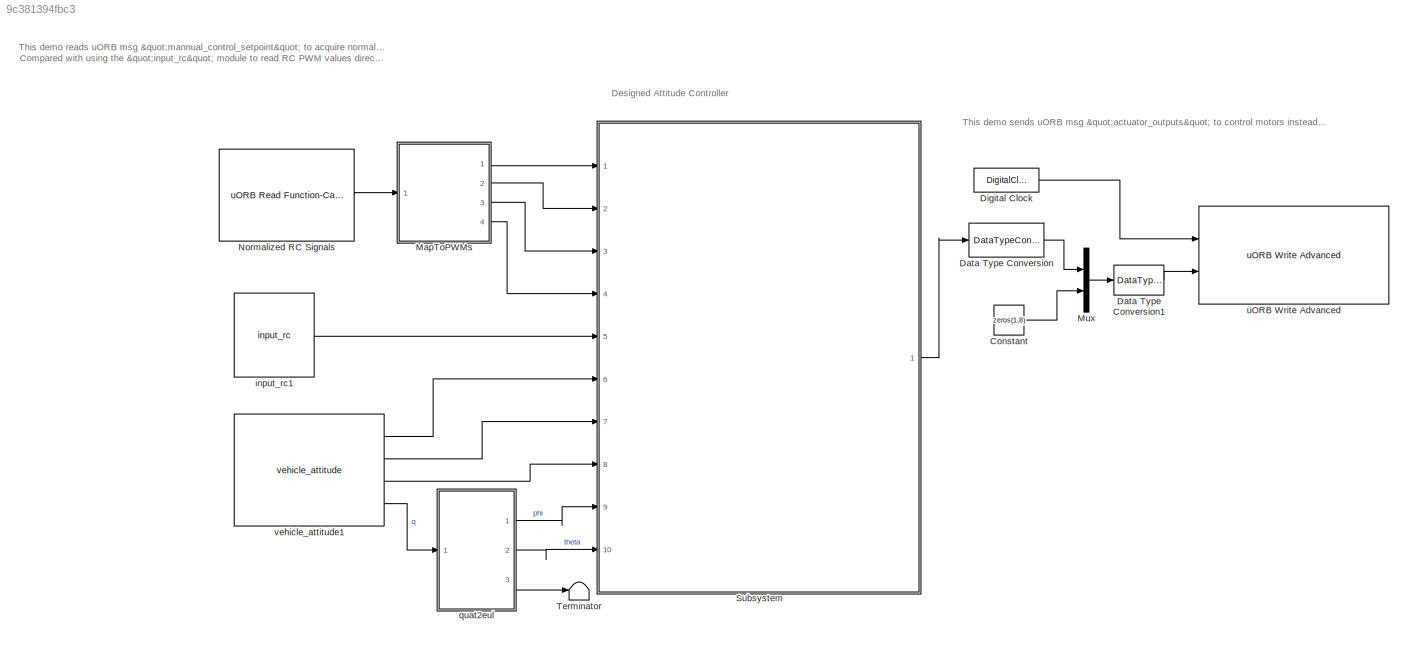
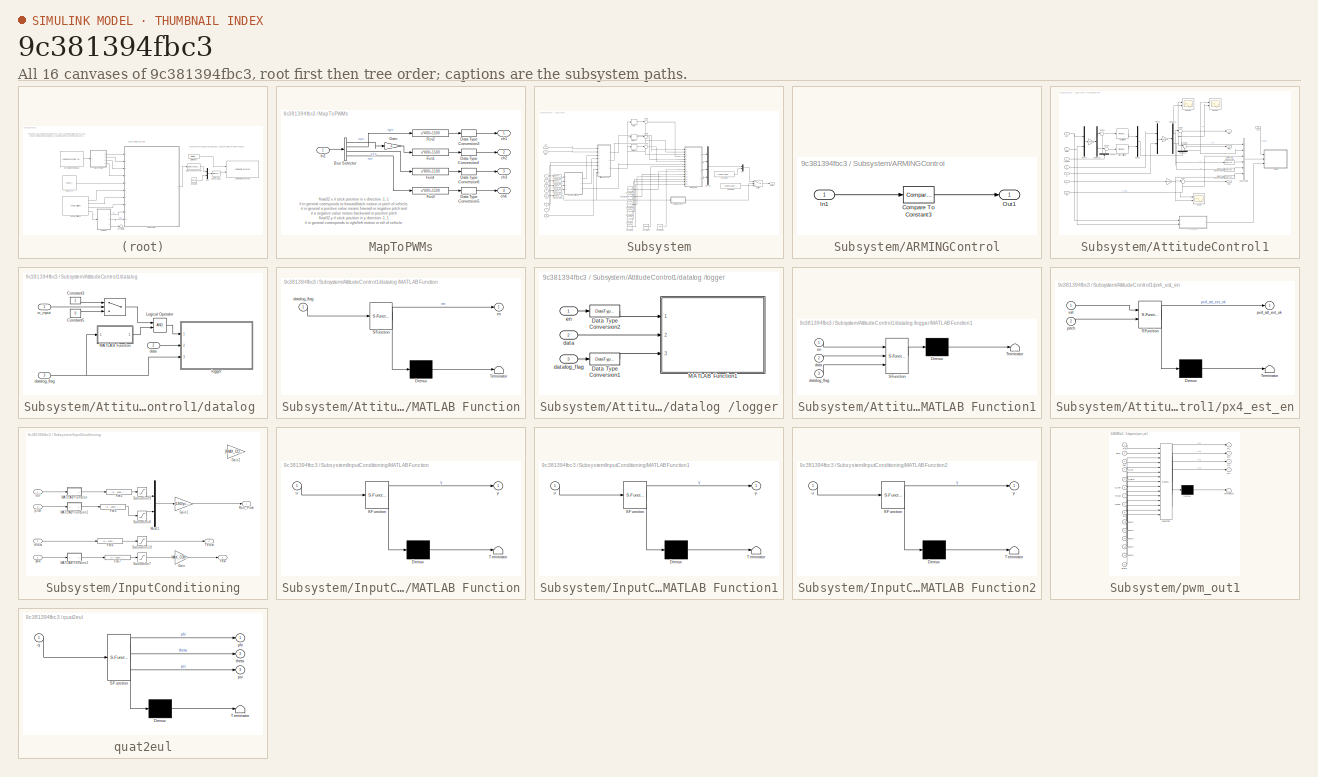
[diagram: thumbnail index - all 16 canvases of the model, root first then tree order]
MODEL slx_9c381394fbc3
KIND model
CONFIG AbsTol = auto
CONFIG EnableMultiTasking = off
CONFIG FixedStep = 0.01
CONFIG InitFcn = Init_control
CONFIG MaxStep = auto
CONFIG MinStep = auto
CONFIG RelTol = 1e-3
CONFIG SampleTimeConstraint = Unconstrained
CONFIG Solver = ode4
CONFIG SolverName = ode4
CONFIG StartTime = 0.0
CONFIG StopTime = inf
BLOCK [Constant] Constant
  Value = zeros(1,8)
BLOCK [DataTypeConversion] Data Type Conversion
  OutDataTypeStr = double
  RndMeth = Floor
  SaturateOnIntegerOverflow = off
BLOCK [DataTypeConversion] Data Type Conversion1
  OutDataTypeStr = single
  RndMeth = Floor
  SaturateOnIntegerOverflow = off
BLOCK [DigitalClock] Digital Clock
  SampleTime = -1
BLOCK [SubSystem] MapToPWMs
  Ports = [1, 4]
  RequestExecContextInheritance = off
BLOCK [BusSelector] MapToPWMs/Bus Selector
  OutputSignals = x,y,z,r
  Ports = [1, 4]
BLOCK [DataTypeConversion] MapToPWMs/Data Type Conversion3
  OutDataTypeStr = uint16
  RndMeth = Floor
  SaturateOnIntegerOverflow = off
BLOCK [DataTypeConversion] MapToPWMs/Data Type Conversion4
  OutDataTypeStr = uint16
  RndMeth = Floor
  SaturateOnIntegerOverflow = off
BLOCK [DataTypeConversion] MapToPWMs/Data Type Conversion5
  OutDataTypeStr = uint16
  RndMeth = Floor
  SaturateOnIntegerOverflow = off
BLOCK [DataTypeConversion] MapToPWMs/Data Type Conversion6
  OutDataTypeStr = uint16
  RndMeth = Floor
  SaturateOnIntegerOverflow = off
BLOCK [Fcn] MapToPWMs/Fcn1
  Expr = u*400+1500
BLOCK [Fcn] MapToPWMs/Fcn2
  Expr = u*400+1500
BLOCK [Fcn] MapToPWMs/Fcn3
  Expr = u*400+1500
BLOCK [Fcn] MapToPWMs/Fcn4
  Expr = u*800+1100
BLOCK [Gain] MapToPWMs/Gain
  Gain = -1
BLOCK [Inport] MapToPWMs/In1
BLOCK [Outport] MapToPWMs/ch1
  VectorParamsAs1DForOutWhenUnconnected = off
BLOCK [Outport] MapToPWMs/ch2
  Port = 2
  VectorParamsAs1DForOutWhenUnconnected = off
BLOCK [Outport] MapToPWMs/ch3
  Port = 3
  VectorParamsAs1DForOutWhenUnconnected = off
BLOCK [Outport] MapToPWMs/ch4
  Port = 4
  VectorParamsAs1DForOutWhenUnconnected = off
BLOCK [Mux] Mux
  DisplayOption = bar
  Inputs = 2
  Ports = [2, 1]
BLOCK [Reference] Normalized RC Signals  REF=pixhawk_slib_uORB_RW/uORB Read Function-Call Trigger
  Ports = [0, 1]
  SourceBlock = pixhawk_slib_uORB_RW/uORB Read Function-Call Trigger
  SourceProductName = Pixhawk Target Blocks
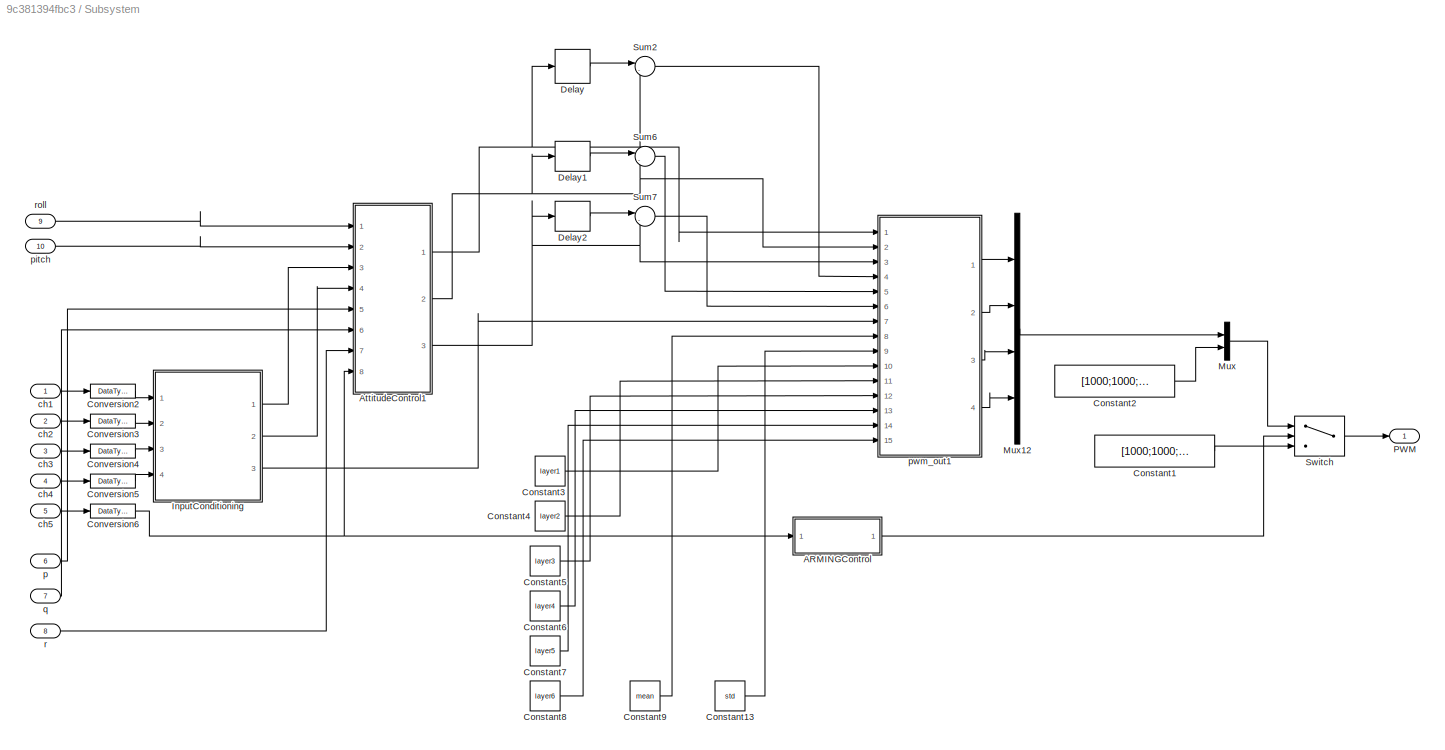
BLOCK [SubSystem] Subsystem
  Ports = [10, 1]
  RequestExecContextInheritance = off
BLOCK [SubSystem] Subsystem/ARMINGControl
  Ports = [1, 1]
  RequestExecContextInheritance = off
BLOCK [Reference] Subsystem/ARMINGControl/Compare To Constant3  REF=simulink/Logic and Bit
Operations/Compare
To Constant
  Ports = [1, 1]
  SourceBlock = simulink/Logic and Bit\nOperations/Compare\nTo Constant
  SourceProductBaseCode = SL
  SourceType = Compare To Constant
BLOCK [Inport] Subsystem/ARMINGControl/In1
BLOCK [Outport] Subsystem/ARMINGControl/Out1
  VectorParamsAs1DForOutWhenUnconnected = off
BLOCK [SubSystem] Subsystem/AttitudeControl1
  Ports = [8, 3]
  RequestExecContextInheritance = off
BLOCK [Gain] Subsystem/AttitudeControl1/ 
  Gain = 180/pi
BLOCK [Gain] Subsystem/AttitudeControl1/  
  Gain = 180/pi
BLOCK [Gain] Subsystem/AttitudeControl1/          
  Gain = 180/pi
BLOCK [BusCreator] Subsystem/AttitudeControl1/Bus Creator
  DisplayOption = bar
  InheritFromInputs = on
  Inputs = 6
  Ports = [6, 1]
BLOCK [DataTypeConversion] Subsystem/AttitudeControl1/Data Type Conversion
  OutDataTypeStr = double
  RndMeth = Floor
  SaturateOnIntegerOverflow = off
BLOCK [DataTypeConversion] Subsystem/AttitudeControl1/Data Type Conversion1
  OutDataTypeStr = double
  RndMeth = Floor
  SaturateOnIntegerOverflow = off
BLOCK [DataTypeConversion] Subsystem/AttitudeControl1/Data Type Conversion2
  OutDataTypeStr = double
  RndMeth = Floor
  SaturateOnIntegerOverflow = off
BLOCK [Demux] Subsystem/AttitudeControl1/Demux10
  Outputs = 2
  Ports = [1, 2]
BLOCK [Demux] Subsystem/AttitudeControl1/Demux12
  NameLocation = right
  Outputs = 2
  Ports = [1, 2]
BLOCK [Demux] Subsystem/AttitudeControl1/Demux13
  Outputs = 2
  Ports = [1, 2]
BLOCK [Demux] Subsystem/AttitudeControl1/Demux16
  NameLocation = right
  Outputs = 2
  Ports = [1, 2]
BLOCK [Mux] Subsystem/AttitudeControl1/Mux13
  DisplayOption = bar
  Inputs = 2
  Ports = [2, 1]
BLOCK [Mux] Subsystem/AttitudeControl1/Mux15
  DisplayOption = bar
  Inputs = 2
  Ports = [2, 1]
BLOCK [Mux] Subsystem/AttitudeControl1/Mux22
  DisplayOption = bar
  Inputs = 2
  Ports = [2, 1]
BLOCK [Outport] Subsystem/AttitudeControl1/Pitch
  Port = 2
  VectorParamsAs1DForOutWhenUnconnected = off
BLOCK [Outport] Subsystem/AttitudeControl1/Roll
  VectorParamsAs1DForOutWhenUnconnected = off
BLOCK [Scope] Subsystem/AttitudeControl1/Scope
  Floating = off
  NumInputPorts = 2
  Ports = [2]
  ScopeSpecificationString = Simulink.scopes.TimeScopeBlockCfg('CurrentConfiguration', extmgr.ConfigurationSet(extmgr.Configuration('Core','General UI',true),extmgr.Configuration('Core','Source UI',true),extmgr.Configuration('Sources','WiredSimulink',true,'DataLoggingVariableName','ScopeData2'),extmgr.Configuration('Visuals','Time Domain',true,'SerializedDisplays',{struct('MinYLimReal','-21.34606','MaxYLimReal','47.5262','YLa...<+1397ch>
BLOCK [Scope] Subsystem/AttitudeControl1/Scope1
  Floating = off
  NumInputPorts = 2
  Ports = [2]
  ScopeSpecificationString = Simulink.scopes.TimeScopeBlockCfg('CurrentConfiguration', extmgr.ConfigurationSet(extmgr.Configuration('Core','General UI',true),extmgr.Configuration('Core','Source UI',true),extmgr.Configuration('Sources','WiredSimulink',true,'DataLoggingVariableName','ScopeData3'),extmgr.Configuration('Visuals','Time Domain',true,'SerializedDisplays',{struct('MinYLimReal','-317.22955','MaxYLimReal','245.61283','...<+1406ch>
BLOCK [Scope] Subsystem/AttitudeControl1/Scope2
  Floating = off
  NumInputPorts = 2
  Ports = [2]
  ScopeSpecificationString = Simulink.scopes.TimeScopeBlockCfg('CurrentConfiguration', extmgr.ConfigurationSet(extmgr.Configuration('Core','General UI',true),extmgr.Configuration('Core','Source UI',true),extmgr.Configuration('Sources','WiredSimulink',true,'DataLoggingVariableName','ScopeData4'),extmgr.Configuration('Visuals','Time Domain',true,'SerializedDisplays',{struct('MinYLimReal','-330.49549','MaxYLimReal','242.5638','Y...<+1405ch>
BLOCK [Sum] Subsystem/AttitudeControl1/Sum17
  Inputs = |-+
  Ports = [2, 1]
BLOCK [Sum] Subsystem/AttitudeControl1/Sum18
  Inputs = |-+
  Ports = [2, 1]
BLOCK [Sum] Subsystem/AttitudeControl1/Sum19
  Inputs = |-+
  Ports = [2, 1]
BLOCK [Sum] Subsystem/AttitudeControl1/Sum21
  Inputs = |-+
  Ports = [2, 1]
BLOCK [Sum] Subsystem/AttitudeControl1/Sum22
  Inputs = |-+
  Ports = [2, 1]
BLOCK [Outport] Subsystem/AttitudeControl1/Yaw
  Port = 3
  VectorParamsAs1DForOutWhenUnconnected = off
BLOCK [Inport] Subsystem/AttitudeControl1/ch5
  Port = 8
BLOCK [SubSystem] Subsystem/AttitudeControl1/datalog 
  Ports = [3]
  RequestExecContextInheritance = off
BLOCK [Switch] Subsystem/AttitudeControl1/datalog / 
  Criteria = u2 > Threshold
  InputSameDT = off
  SaturateOnIntegerOverflow = off
  Threshold = 1600
BLOCK [Constant] Subsystem/AttitudeControl1/datalog /Constant3
BLOCK [Constant] Subsystem/AttitudeControl1/datalog /Constant5
  Value = 0
BLOCK [Logic] Subsystem/AttitudeControl1/datalog /Logical Operator
  AllPortsSameDT = off
  OutDataTypeStr = boolean
  Ports = [2, 1]
BLOCK [SubSystem] Subsystem/AttitudeControl1/datalog /MATLAB Function
  ErrorFcn = Stateflow.Translate.translate
  PermitHierarchicalResolution = ExplicitOnly
  Ports = [1, 1]
  RequestExecContextInheritance = off
  SFBlockType = MATLAB Function
  TreatAsAtomicUnit = on
BLOCK [Demux] Subsystem/AttitudeControl1/datalog /MATLAB Function/ Demux 
  Outputs = 1
  Ports = [1, 1]
BLOCK [S-Function] Subsystem/AttitudeControl1/datalog /MATLAB Function/ SFunction 
  EnableBusSupport = on
  FunctionName = sf_sfun
  PortCounts = [1 2]
  Ports = [1, 2]
  SFcnIsStateOwnerBlock = off
  SFunctionDeploymentMode = off
  Tag = Stateflow S-Function 4
BLOCK [Terminator] Subsystem/AttitudeControl1/datalog /MATLAB Function/ Terminator 
BLOCK [Inport] Subsystem/AttitudeControl1/datalog /MATLAB Function/datalog_flag
BLOCK [Outport] Subsystem/AttitudeControl1/datalog /MATLAB Function/en
  VectorParamsAs1DForOutWhenUnconnected = off
BLOCK [Inport] Subsystem/AttitudeControl1/datalog /data
  Port = 2
BLOCK [Inport] Subsystem/AttitudeControl1/datalog /datalog_flag
  Port = 3
BLOCK [SubSystem] Subsystem/AttitudeControl1/datalog /logger
  Ports = [3]
  RequestExecContextInheritance = off
BLOCK [DataTypeConversion] Subsystem/AttitudeControl1/datalog /logger/Data Type Conversion1
  OutDataTypeStr = boolean
  RndMeth = Floor
  SaturateOnIntegerOverflow = off
BLOCK [DataTypeConversion] Subsystem/AttitudeControl1/datalog /logger/Data Type Conversion2
  OutDataTypeStr = boolean
  RndMeth = Floor
  SaturateOnIntegerOverflow = off
BLOCK [SubSystem] Subsystem/AttitudeControl1/datalog /logger/MATLAB Function1
  ErrorFcn = Stateflow.Translate.translate
  PermitHierarchicalResolution = ExplicitOnly
  Ports = [3]
  RequestExecContextInheritance = off
  SFBlockType = MATLAB Function
  TreatAsAtomicUnit = on
BLOCK [Demux] Subsystem/AttitudeControl1/datalog /logger/MATLAB Function1/ Demux 
  Outputs = 1
  Ports = [1, 1]
BLOCK [S-Function] Subsystem/AttitudeControl1/datalog /logger/MATLAB Function1/ SFunction 
  EnableBusSupport = on
  FunctionName = sf_sfun
  Parameters = cacheflag,logname,numRecs
  PortCounts = [3 1]
  Ports = [3, 1]
  SFcnIsStateOwnerBlock = off
  SFunctionDeploymentMode = off
  Tag = Stateflow S-Function 5
BLOCK [Terminator] Subsystem/AttitudeControl1/datalog /logger/MATLAB Function1/ Terminator 
BLOCK [Inport] Subsystem/AttitudeControl1/datalog /logger/MATLAB Function1/data
  Port = 2
BLOCK [Inport] Subsystem/AttitudeControl1/datalog /logger/MATLAB Function1/datalog_flag
  Port = 3
BLOCK [Inport] Subsystem/AttitudeControl1/datalog /logger/MATLAB Function1/en
BLOCK [Inport] Subsystem/AttitudeControl1/datalog /logger/data
  Port = 2
BLOCK [Inport] Subsystem/AttitudeControl1/datalog /logger/datalog_flag
  Port = 3
BLOCK [Inport] Subsystem/AttitudeControl1/datalog /logger/en
BLOCK [Inport] Subsystem/AttitudeControl1/datalog /rc_input
BLOCK [Inport] Subsystem/AttitudeControl1/p
  Port = 5
BLOCK [Inport] Subsystem/AttitudeControl1/phi
BLOCK [Reference] Subsystem/AttitudeControl1/pitch_attitude  REF=simulink/Continuous/PID Controller
  Ports = [1, 1]
  SourceBlock = simulink/Continuous/PID Controller
  SourceProductBaseCode = SL
  SourceType = PID 1dof
BLOCK [SubSystem] Subsystem/AttitudeControl1/px4_est_en
  ErrorFcn = Stateflow.Translate.translate
  PermitHierarchicalResolution = ExplicitOnly
  Ports = [2, 1]
  RequestExecContextInheritance = off
  SFBlockType = MATLAB Function
  TreatAsAtomicUnit = on
BLOCK [Demux] Subsystem/AttitudeControl1/px4_est_en/ Demux 
  Outputs = 1
  Ports = [1, 1]
BLOCK [S-Function] Subsystem/AttitudeControl1/px4_est_en/ SFunction 
  EnableBusSupport = on
  FunctionName = sf_sfun
  PortCounts = [2 2]
  Ports = [2, 2]
  SFcnIsStateOwnerBlock = off
  SFunctionDeploymentMode = off
  Tag = Stateflow S-Function 6
BLOCK [Terminator] Subsystem/AttitudeControl1/px4_est_en/ Terminator 
BLOCK [Inport] Subsystem/AttitudeControl1/px4_est_en/pitch
  Port = 2
BLOCK [Outport] Subsystem/AttitudeControl1/px4_est_en/px4_att_est_ok
  VectorParamsAs1DForOutWhenUnconnected = off
BLOCK [Inport] Subsystem/AttitudeControl1/px4_est_en/roll
BLOCK [Inport] Subsystem/AttitudeControl1/q
  Port = 6
BLOCK [Inport] Subsystem/AttitudeControl1/r
  Port = 7
BLOCK [Reference] Subsystem/AttitudeControl1/roll_attitude  REF=simulink/Continuous/PID Controller
  Ports = [1, 1]
  SourceBlock = simulink/Continuous/PID Controller
  SourceProductBaseCode = SL
  SourceType = PID 1dof
BLOCK [Inport] Subsystem/AttitudeControl1/roll_pitch
  Port = 3
BLOCK [Inport] Subsystem/AttitudeControl1/theta
  Port = 2
BLOCK [Inport] Subsystem/AttitudeControl1/yaw
  Port = 4
BLOCK [Constant] Subsystem/Constant1
  Value = [1000;1000;1000;1000;1000;1000;1000;1000]
BLOCK [Constant] Subsystem/Constant13
  Value = std
BLOCK [Constant] Subsystem/Constant2
  Value = [1000;1000;1000;1000]
BLOCK [Constant] Subsystem/Constant3
  Value = layer1
BLOCK [Constant] Subsystem/Constant4
  Value = layer2
BLOCK [Constant] Subsystem/Constant5
  Value = layer3
BLOCK [Constant] Subsystem/Constant6
  Value = layer4
BLOCK [Constant] Subsystem/Constant7
  Value = layer5
BLOCK [Constant] Subsystem/Constant8
  Value = layer6
BLOCK [Constant] Subsystem/Constant9
  Value = mean
BLOCK [DataTypeConversion] Subsystem/Conversion2
  OutDataTypeStr = double
  RndMeth = Floor
  SaturateOnIntegerOverflow = off
BLOCK [DataTypeConversion] Subsystem/Conversion3
  OutDataTypeStr = double
  RndMeth = Floor
  SaturateOnIntegerOverflow = off
BLOCK [DataTypeConversion] Subsystem/Conversion4
  OutDataTypeStr = double
  RndMeth = Floor
  SaturateOnIntegerOverflow = off
BLOCK [DataTypeConversion] Subsystem/Conversion5
  OutDataTypeStr = double
  RndMeth = Floor
  SaturateOnIntegerOverflow = off
BLOCK [DataTypeConversion] Subsystem/Conversion6
  OutDataTypeStr = double
  RndMeth = Floor
  SaturateOnIntegerOverflow = off
BLOCK [Delay] Subsystem/Delay
  DelayLength = 1
  InitialCondition = 0
  InputPortMap = u0
  Ports = [1, 1]
BLOCK [Delay] Subsystem/Delay1
  DelayLength = 1
  InitialCondition = 0
  InputPortMap = u0
  Ports = [1, 1]
BLOCK [Delay] Subsystem/Delay2
  DelayLength = 1
  InitialCondition = 0
  InputPortMap = u0
  Ports = [1, 1]
BLOCK [SubSystem] Subsystem/InputConditioning
  Ports = [4, 3]
  RequestExecContextInheritance = off
BLOCK [Fcn] Subsystem/InputConditioning/Fcn2
  Expr = (u - 1500) / 400
BLOCK [Fcn] Subsystem/InputConditioning/Fcn5
  Expr = (u - 1500) / 400
BLOCK [Fcn] Subsystem/InputConditioning/Fcn6
  Expr = (u - 1100) / 800
BLOCK [Fcn] Subsystem/InputConditioning/Fcn7
  Expr = (u - 1500) / 400
BLOCK [Gain] Subsystem/InputConditioning/Gain
  Gain = MAX_CONTROL_ANGLE_RATE_Y
BLOCK [Gain] Subsystem/InputConditioning/Gain1
  Gain = [180/pi 180/pi]
  OutDataTypeStr = Inherit: Inherit via back propagation
BLOCK [Gain] Subsystem/InputConditioning/Gain2
  Gain = [MAX_CONTROL_ANGLE_RP MAX_CONTROL_ANGLE_RP]
  OutDataTypeStr = Inherit: Inherit via back propagation
BLOCK [SubSystem] Subsystem/InputConditioning/MATLAB Function
  ErrorFcn = Stateflow.Translate.translate
  PermitHierarchicalResolution = ExplicitOnly
  Ports = [1, 1]
  RequestExecContextInheritance = off
  SFBlockType = MATLAB Function
  TreatAsAtomicUnit = on
BLOCK [Demux] Subsystem/InputConditioning/MATLAB Function/ Demux 
  Outputs = 1
  Ports = [1, 1]
BLOCK [S-Function] Subsystem/InputConditioning/MATLAB Function/ SFunction 
  EnableBusSupport = on
  FunctionName = sf_sfun
  PortCounts = [1 2]
  Ports = [1, 2]
  SFcnIsStateOwnerBlock = off
  SFunctionDeploymentMode = off
  Tag = Stateflow S-Function 1
BLOCK [Terminator] Subsystem/InputConditioning/MATLAB Function/ Terminator 
BLOCK [Inport] Subsystem/InputConditioning/MATLAB Function/u
BLOCK [Outport] Subsystem/InputConditioning/MATLAB Function/y
  VectorParamsAs1DForOutWhenUnconnected = off
BLOCK [SubSystem] Subsystem/InputConditioning/MATLAB Function1
  ErrorFcn = Stateflow.Translate.translate
  PermitHierarchicalResolution = ExplicitOnly
  Ports = [1, 1]
  RequestExecContextInheritance = off
  SFBlockType = MATLAB Function
  TreatAsAtomicUnit = on
BLOCK [Demux] Subsystem/InputConditioning/MATLAB Function1/ Demux 
  Outputs = 1
  Ports = [1, 1]
BLOCK [S-Function] Subsystem/InputConditioning/MATLAB Function1/ SFunction 
  EnableBusSupport = on
  FunctionName = sf_sfun
  PortCounts = [1 2]
  Ports = [1, 2]
  SFcnIsStateOwnerBlock = off
  SFunctionDeploymentMode = off
  Tag = Stateflow S-Function 2
BLOCK [Terminator] Subsystem/InputConditioning/MATLAB Function1/ Terminator 
BLOCK [Inport] Subsystem/InputConditioning/MATLAB Function1/u
BLOCK [Outport] Subsystem/InputConditioning/MATLAB Function1/y
  VectorParamsAs1DForOutWhenUnconnected = off
BLOCK [SubSystem] Subsystem/InputConditioning/MATLAB Function2
  ErrorFcn = Stateflow.Translate.translate
  PermitHierarchicalResolution = ExplicitOnly
  Ports = [1, 1]
  RequestExecContextInheritance = off
  SFBlockType = MATLAB Function
  TreatAsAtomicUnit = on
BLOCK [Demux] Subsystem/InputConditioning/MATLAB Function2/ Demux 
  Outputs = 1
  Ports = [1, 1]
BLOCK [S-Function] Subsystem/InputConditioning/MATLAB Function2/ SFunction 
  EnableBusSupport = on
  FunctionName = sf_sfun
  PortCounts = [1 2]
  Ports = [1, 2]
  SFcnIsStateOwnerBlock = off
  SFunctionDeploymentMode = off
  Tag = Stateflow S-Function 3
BLOCK [Terminator] Subsystem/InputConditioning/MATLAB Function2/ Terminator 
BLOCK [Inport] Subsystem/InputConditioning/MATLAB Function2/u
BLOCK [Outport] Subsystem/InputConditioning/MATLAB Function2/y
  VectorParamsAs1DForOutWhenUnconnected = off
BLOCK [Mux] Subsystem/InputConditioning/Mux21
  DisplayOption = bar
  Inputs = 2
  Ports = [2, 1]
BLOCK [Outport] Subsystem/InputConditioning/Roll_Pitch
  VectorParamsAs1DForOutWhenUnconnected = off
BLOCK [Saturate] Subsystem/InputConditioning/Saturation10
  LowerLimit = 0
  UpperLimit = 1
BLOCK [Saturate] Subsystem/InputConditioning/Saturation7
  LowerLimit = -1
  UpperLimit = 1
BLOCK [Saturate] Subsystem/InputConditioning/Saturation8
  LowerLimit = -1
  UpperLimit = 1
BLOCK [Saturate] Subsystem/InputConditioning/Saturation9
  LowerLimit = -1
  UpperLimit = 1
BLOCK [Outport] Subsystem/InputConditioning/Thrust
  Port = 3
  VectorParamsAs1DForOutWhenUnconnected = off
BLOCK [Outport] Subsystem/InputConditioning/Yaw
  Port = 2
  VectorParamsAs1DForOutWhenUnconnected = off
BLOCK [Inport] Subsystem/InputConditioning/pitch
  Port = 2
BLOCK [Inport] Subsystem/InputConditioning/roll
BLOCK [Inport] Subsystem/InputConditioning/thrust
  Port = 3
BLOCK [Inport] Subsystem/InputConditioning/yaw
  Port = 4
BLOCK [Mux] Subsystem/Mux
  DisplayOption = bar
  Inputs = 2
  Ports = [2, 1]
BLOCK [Mux] Subsystem/Mux12
  DisplayOption = bar
  Ports = [4, 1]
BLOCK [Outport] Subsystem/PWM
  PortDimensions = 8
  SamplingMode = Sample based
  SignalType = real
  VectorParamsAs1DForOutWhenUnconnected = off
BLOCK [Sum] Subsystem/Sum2
  Inputs = |-+
  Ports = [2, 1]
BLOCK [Sum] Subsystem/Sum6
  Inputs = |-+
  Ports = [2, 1]
BLOCK [Sum] Subsystem/Sum7
  Inputs = |-+
  Ports = [2, 1]
BLOCK [Switch] Subsystem/Switch
  Criteria = u2 > Threshold
  InputSameDT = off
  SaturateOnIntegerOverflow = off
  Threshold = 0.5
BLOCK [Inport] Subsystem/ch1
  OutDataTypeStr = uint16
  PortDimensions = 1
  SamplingMode = Sample based
  SignalType = real
BLOCK [Inport] Subsystem/ch2
  OutDataTypeStr = uint16
  Port = 2
  PortDimensions = 1
  SamplingMode = Sample based
  SignalType = real
BLOCK [Inport] Subsystem/ch3
  OutDataTypeStr = uint16
  Port = 3
  PortDimensions = 1
  SamplingMode = Sample based
  SignalType = real
BLOCK [Inport] Subsystem/ch4
  OutDataTypeStr = uint16
  Port = 4
  PortDimensions = 1
  SamplingMode = Sample based
  SignalType = real
BLOCK [Inport] Subsystem/ch5
  Interpolate = off
  OutDataTypeStr = uint16
  Port = 5
  PortDimensions = 1
  SamplingMode = Sample based
  SignalType = real
BLOCK [Inport] Subsystem/p
  Port = 6
  PortDimensions = 1
  SamplingMode = Sample based
  SignalType = real
BLOCK [Inport] Subsystem/pitch
  Port = 10
  PortDimensions = 1
  SamplingMode = Sample based
  SignalType = real
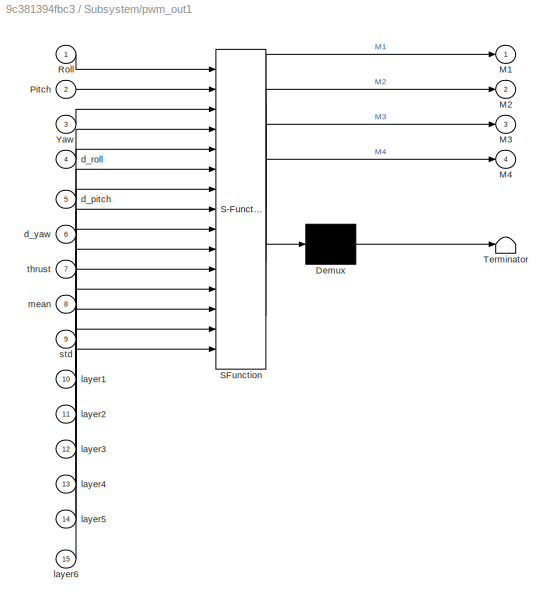
BLOCK [SubSystem] Subsystem/pwm_out1
  ErrorFcn = Stateflow.Translate.translate
  PermitHierarchicalResolution = ExplicitOnly
  Ports = [15, 4]
  RequestExecContextInheritance = off
  SFBlockType = MATLAB Function
  TreatAsAtomicUnit = on
BLOCK [Demux] Subsystem/pwm_out1/ Demux 
  Outputs = 1
  Ports = [1, 1]
BLOCK [S-Function] Subsystem/pwm_out1/ SFunction 
  EnableBusSupport = on
  FunctionName = sf_sfun
  PortCounts = [15 5]
  Ports = [15, 5]
  SFcnIsStateOwnerBlock = off
  SFunctionDeploymentMode = off
  Tag = Stateflow S-Function 8
BLOCK [Terminator] Subsystem/pwm_out1/ Terminator 
BLOCK [Outport] Subsystem/pwm_out1/M1
  VectorParamsAs1DForOutWhenUnconnected = off
BLOCK [Outport] Subsystem/pwm_out1/M2
  Port = 2
  VectorParamsAs1DForOutWhenUnconnected = off
BLOCK [Outport] Subsystem/pwm_out1/M3
  Port = 3
  VectorParamsAs1DForOutWhenUnconnected = off
BLOCK [Outport] Subsystem/pwm_out1/M4
  Port = 4
  VectorParamsAs1DForOutWhenUnconnected = off
BLOCK [Inport] Subsystem/pwm_out1/Pitch
  Port = 2
BLOCK [Inport] Subsystem/pwm_out1/Roll
BLOCK [Inport] Subsystem/pwm_out1/Yaw
  Port = 3
BLOCK [Inport] Subsystem/pwm_out1/d_pitch
  Port = 5
BLOCK [Inport] Subsystem/pwm_out1/d_roll
  Port = 4
BLOCK [Inport] Subsystem/pwm_out1/d_yaw
  Port = 6
BLOCK [Inport] Subsystem/pwm_out1/layer1
  Port = 10
BLOCK [Inport] Subsystem/pwm_out1/layer2
  Port = 11
BLOCK [Inport] Subsystem/pwm_out1/layer3
  Port = 12
BLOCK [Inport] Subsystem/pwm_out1/layer4
  Port = 13
BLOCK [Inport] Subsystem/pwm_out1/layer5
  Port = 14
BLOCK [Inport] Subsystem/pwm_out1/layer6
  Port = 15
BLOCK [Inport] Subsystem/pwm_out1/mean
  Port = 8
BLOCK [Inport] Subsystem/pwm_out1/std
  Port = 9
BLOCK [Inport] Subsystem/pwm_out1/thrust
  Port = 7
BLOCK [Inport] Subsystem/q
  Port = 7
  PortDimensions = 1
  SamplingMode = Sample based
  SignalType = real
BLOCK [Inport] Subsystem/r
  Port = 8
  PortDimensions = 1
  SamplingMode = Sample based
  SignalType = real
BLOCK [Inport] Subsystem/roll
  Port = 9
  PortDimensions = 1
  SamplingMode = Sample based
  SignalType = real
BLOCK [Terminator] Terminator
BLOCK [Reference] input_rc1  REF=pixhawk_slib_sensors_actuators/input_rc
  Description = RC Input Block\n\nThis block provides user input control to the model.\nIt uses the input_rc uORB topic.\n\nThe user has the ability to choose which channels are available as outputs from this block and also some optional outputs. These include \nChannels 1 through 18\ndouble data type indicating the PWM value from the controller \nmeasured pulse widths for each of the supported channels \nChannel Count \nu...<+1797ch>
  Ports = [0, 1]
  SourceBlock = pixhawk_slib_sensors_actuators/input_rc
  SourceProductName = Pixhawk Target Blocks
  SourceType = PX4_Input_RC
BLOCK [SubSystem] quat2eul
  ErrorFcn = Stateflow.Translate.translate
  PermitHierarchicalResolution = ExplicitOnly
  Ports = [1, 3]
  RequestExecContextInheritance = off
  SFBlockType = MATLAB Function
  TreatAsAtomicUnit = on
BLOCK [Demux] quat2eul/ Demux 
  Outputs = 1
  Ports = [1, 1]
BLOCK [S-Function] quat2eul/ SFunction 
  EnableBusSupport = on
  FunctionName = sf_sfun
  PortCounts = [1 4]
  Ports = [1, 4]
  SFcnIsStateOwnerBlock = off
  SFunctionDeploymentMode = off
  Tag = Stateflow S-Function 10
BLOCK [Terminator] quat2eul/ Terminator 
BLOCK [Outport] quat2eul/phi
  VectorParamsAs1DForOutWhenUnconnected = off
BLOCK [Outport] quat2eul/psi
  Port = 3
  VectorParamsAs1DForOutWhenUnconnected = off
BLOCK [Inport] quat2eul/q
BLOCK [Outport] quat2eul/theta
  Port = 2
  VectorParamsAs1DForOutWhenUnconnected = off
BLOCK [Reference] uORB Write Advanced  REF=pixhawk_slib_uORB_RW/uORB Write Advanced
  Ports = [2]
  SourceBlock = pixhawk_slib_uORB_RW/uORB Write Advanced
  SourceProductName = Pixhawk Target Blocks
  UserDataPersistent = on
BLOCK [Reference] vehicle_attitude1  REF=pixhawk_slib_sensors_actuators/vehicle_attitude
  Ports = [0, 4]
  SourceBlock = pixhawk_slib_sensors_actuators/vehicle_attitude
  SourceProductName = Pixhawk Target Blocks
  SourceType = PX4_Vehicle_Attitude
ANNOTATION (root): Designed Attitude Controller
ANNOTATION (root): This demo reads uORB msg "mannual_control_setpoint" to acquire normalized and calibrated RC signals (-1~1 for pitch, roll, yaw control, and 0~1 for throttle control) and then map them to 1000~2000's PWMs values. Compared with using the "input_rc" module to read RC PWM values directlly, this is more reliable and convinenient because you don't need to worry about calibration of RCs.
ANNOTATION (root): This demo sends uORB msg "actuator_outputs" to control motors instead of using the "PWM_output" module, because this demo is for hardware-in-the-loop simulation, we need to send control signals to CopterSim instead of acutal motors.
ANNOTATION MapToPWMs: float32 x # stick position in x direction -1..1 # in general corresponds to forward/back motion or pitch of vehicle, # in general a positive value means forward or negative pitch and # a negative value means backward or positive pitch float32 y # stick position in y direction -1..1 # in general corresponds to right/left motion or roll of vehicle, # in general a positive value means right or positi...<+526ch>
LINE Constant:1 -> Mux:2
LINE Data Type Conversion1:1 -> uORB Write Advanced:2
LINE Data Type Conversion:1 -> Mux:1
LINE Digital Clock:1 -> uORB Write Advanced:1
LINE MapToPWMs/Bus Selector:1 -> MapToPWMs/Gain:1
LINE MapToPWMs/Bus Selector:2 -> MapToPWMs/Fcn2:1
LINE MapToPWMs/Bus Selector:3 -> MapToPWMs/Fcn4:1
LINE MapToPWMs/Bus Selector:4 -> MapToPWMs/Fcn3:1
LINE MapToPWMs/Data Type Conversion3:1 -> MapToPWMs/ch1:1
LINE MapToPWMs/Data Type Conversion4:1 -> MapToPWMs/ch2:1
LINE MapToPWMs/Data Type Conversion5:1 -> MapToPWMs/ch4:1
LINE MapToPWMs/Data Type Conversion6:1 -> MapToPWMs/ch3:1
LINE MapToPWMs/Fcn1:1 -> MapToPWMs/Data Type Conversion4:1
LINE MapToPWMs/Fcn2:1 -> MapToPWMs/Data Type Conversion3:1
LINE MapToPWMs/Fcn3:1 -> MapToPWMs/Data Type Conversion5:1
LINE MapToPWMs/Fcn4:1 -> MapToPWMs/Data Type Conversion6:1
LINE MapToPWMs/Gain:1 -> MapToPWMs/Fcn1:1
LINE MapToPWMs/In1:1 -> MapToPWMs/Bus Selector:1
LINE MapToPWMs:1 -> Subsystem:1
LINE MapToPWMs:2 -> Subsystem:2
LINE MapToPWMs:3 -> Subsystem:3
LINE MapToPWMs:4 -> Subsystem:4
LINE Mux:1 -> Data Type Conversion1:1
LINE Normalized RC Signals:1 -> MapToPWMs:1
LINE Subsystem/ARMINGControl/Compare To Constant3:1 -> Subsystem/ARMINGControl/Out1:1
LINE Subsystem/ARMINGControl/In1:1 -> Subsystem/ARMINGControl/Compare To Constant3:1
LINE Subsystem/ARMINGControl:1 -> Subsystem/Switch:2
NET Subsystem/AttitudeControl1/          :1 -> Subsystem/AttitudeControl1/Data Type Conversion2:1, Subsystem/AttitudeControl1/Scope:2, Subsystem/AttitudeControl1/Sum17:1
LINE Subsystem/AttitudeControl1/  :1 -> Subsystem/AttitudeControl1/Demux13:1
LINE Subsystem/AttitudeControl1/ :1 -> Subsystem/AttitudeControl1/Demux10:1
LINE Subsystem/AttitudeControl1/Bus Creator:1 -> Subsystem/AttitudeControl1/datalog :2
LINE Subsystem/AttitudeControl1/Data Type Conversion1:1 -> Subsystem/AttitudeControl1/Bus Creator:5
LINE Subsystem/AttitudeControl1/Data Type Conversion2:1 -> Subsystem/AttitudeControl1/Bus Creator:6
LINE Subsystem/AttitudeControl1/Data Type Conversion:1 -> Subsystem/AttitudeControl1/Bus Creator:4
LINE Subsystem/AttitudeControl1/Demux10:1 -> Subsystem/AttitudeControl1/Sum18:1
LINE Subsystem/AttitudeControl1/Demux10:2 -> Subsystem/AttitudeControl1/Sum19:1
LINE Subsystem/AttitudeControl1/Demux12:1 -> Subsystem/AttitudeControl1/Sum18:2
LINE Subsystem/AttitudeControl1/Demux12:2 -> Subsystem/AttitudeControl1/Sum19:2
NET Subsystem/AttitudeControl1/Demux13:1 -> Subsystem/AttitudeControl1/Data Type Conversion:1, Subsystem/AttitudeControl1/Scope2:2, Subsystem/AttitudeControl1/Sum21:1
NET Subsystem/AttitudeControl1/Demux13:2 -> Subsystem/AttitudeControl1/Data Type Conversion1:1, Subsystem/AttitudeControl1/Scope1:2, Subsystem/AttitudeControl1/Sum22:1
NET Subsystem/AttitudeControl1/Demux16:1 -> Subsystem/AttitudeControl1/Bus Creator:1, Subsystem/AttitudeControl1/Scope2:1, Subsystem/AttitudeControl1/Sum21:2
NET Subsystem/AttitudeControl1/Demux16:2 -> Subsystem/AttitudeControl1/Bus Creator:2, Subsystem/AttitudeControl1/Scope1:1, Subsystem/AttitudeControl1/Sum22:2
LINE Subsystem/AttitudeControl1/Mux13:1 -> Subsystem/AttitudeControl1/  :1
LINE Subsystem/AttitudeControl1/Mux15:1 -> Subsystem/AttitudeControl1/ :1
LINE Subsystem/AttitudeControl1/Mux22:1 -> Subsystem/AttitudeControl1/Demux16:1
LINE Subsystem/AttitudeControl1/Sum17:1 -> Subsystem/AttitudeControl1/Yaw:1
LINE Subsystem/AttitudeControl1/Sum18:1 -> Subsystem/AttitudeControl1/roll_attitude:1
LINE Subsystem/AttitudeControl1/Sum19:1 -> Subsystem/AttitudeControl1/pitch_attitude:1
LINE Subsystem/AttitudeControl1/Sum21:1 -> Subsystem/AttitudeControl1/Roll:1
LINE Subsystem/AttitudeControl1/Sum22:1 -> Subsystem/AttitudeControl1/Pitch:1
LINE Subsystem/AttitudeControl1/ch5:1 -> Subsystem/AttitudeControl1/datalog :1
LINE Subsystem/AttitudeControl1/datalog / :1 -> Subsystem/AttitudeControl1/datalog /Logical Operator:1
LINE Subsystem/AttitudeControl1/datalog /Constant3:1 -> Subsystem/AttitudeControl1/datalog / :1
LINE Subsystem/AttitudeControl1/datalog /Constant5:1 -> Subsystem/AttitudeControl1/datalog / :3
LINE Subsystem/AttitudeControl1/datalog /Logical Operator:1 -> Subsystem/AttitudeControl1/datalog /logger:1
LINE Subsystem/AttitudeControl1/datalog /MATLAB Function:1 -> Subsystem/AttitudeControl1/datalog /Logical Operator:2
LINE Subsystem/AttitudeControl1/datalog /data:1 -> Subsystem/AttitudeControl1/datalog /logger:2
NET Subsystem/AttitudeControl1/datalog /datalog_flag:1 -> Subsystem/AttitudeControl1/datalog /MATLAB Function:1, Subsystem/AttitudeControl1/datalog /logger:3
LINE Subsystem/AttitudeControl1/datalog /logger/Data Type Conversion1:1 -> Subsystem/AttitudeControl1/datalog /logger/MATLAB Function1:3
LINE Subsystem/AttitudeControl1/datalog /logger/Data Type Conversion2:1 -> Subsystem/AttitudeControl1/datalog /logger/MATLAB Function1:1
LINE Subsystem/AttitudeControl1/datalog /logger/data:1 -> Subsystem/AttitudeControl1/datalog /logger/MATLAB Function1:2
LINE Subsystem/AttitudeControl1/datalog /logger/datalog_flag:1 -> Subsystem/AttitudeControl1/datalog /logger/Data Type Conversion1:1
LINE Subsystem/AttitudeControl1/datalog /logger/en:1 -> Subsystem/AttitudeControl1/datalog /logger/Data Type Conversion2:1
LINE Subsystem/AttitudeControl1/datalog /rc_input:1 -> Subsystem/AttitudeControl1/datalog / :2
LINE Subsystem/AttitudeControl1/p:1 -> Subsystem/AttitudeControl1/Mux13:1
NET Subsystem/AttitudeControl1/phi:1 -> Subsystem/AttitudeControl1/Mux15:1, Subsystem/AttitudeControl1/px4_est_en:1
LINE Subsystem/AttitudeControl1/pitch_attitude:1 -> Subsystem/AttitudeControl1/Mux22:2
LINE Subsystem/AttitudeControl1/px4_est_en:1 -> Subsystem/AttitudeControl1/datalog :3
LINE Subsystem/AttitudeControl1/q:1 -> Subsystem/AttitudeControl1/Mux13:2
LINE Subsystem/AttitudeControl1/r:1 -> Subsystem/AttitudeControl1/          :1
LINE Subsystem/AttitudeControl1/roll_attitude:1 -> Subsystem/AttitudeControl1/Mux22:1
LINE Subsystem/AttitudeControl1/roll_pitch:1 -> Subsystem/AttitudeControl1/Demux12:1
NET Subsystem/AttitudeControl1/theta:1 -> Subsystem/AttitudeControl1/Mux15:2, Subsystem/AttitudeControl1/px4_est_en:2
NET Subsystem/AttitudeControl1/yaw:1 -> Subsystem/AttitudeControl1/Bus Creator:3, Subsystem/AttitudeControl1/Scope:1, Subsystem/AttitudeControl1/Sum17:2
NET Subsystem/AttitudeControl1:1 -> Subsystem/Delay:1, Subsystem/Sum2:2, Subsystem/pwm_out1:1
NET Subsystem/AttitudeControl1:2 -> Subsystem/Delay1:1, Subsystem/Sum6:2, Subsystem/pwm_out1:2
NET Subsystem/AttitudeControl1:3 -> Subsystem/Delay2:1, Subsystem/Sum7:2, Subsystem/pwm_out1:3
LINE Subsystem/Constant13:1 -> Subsystem/pwm_out1:9
LINE Subsystem/Constant1:1 -> Subsystem/Switch:3
LINE Subsystem/Constant2:1 -> Subsystem/Mux:2
LINE Subsystem/Constant3:1 -> Subsystem/pwm_out1:10
LINE Subsystem/Constant4:1 -> Subsystem/pwm_out1:11
LINE Subsystem/Constant5:1 -> Subsystem/pwm_out1:12
LINE Subsystem/Constant6:1 -> Subsystem/pwm_out1:13
LINE Subsystem/Constant7:1 -> Subsystem/pwm_out1:14
LINE Subsystem/Constant8:1 -> Subsystem/pwm_out1:15
LINE Subsystem/Constant9:1 -> Subsystem/pwm_out1:8
LINE Subsystem/Conversion2:1 -> Subsystem/InputConditioning:1
LINE Subsystem/Conversion3:1 -> Subsystem/InputConditioning:2
LINE Subsystem/Conversion4:1 -> Subsystem/InputConditioning:3
LINE Subsystem/Conversion5:1 -> Subsystem/InputConditioning:4
NET Subsystem/Conversion6:1 -> Subsystem/ARMINGControl:1, Subsystem/AttitudeControl1:8
LINE Subsystem/Delay1:1 -> Subsystem/Sum6:1
LINE Subsystem/Delay2:1 -> Subsystem/Sum7:1
LINE Subsystem/Delay:1 -> Subsystem/Sum2:1
LINE Subsystem/InputConditioning/Fcn2:1 -> Subsystem/InputConditioning/Saturation9:1
LINE Subsystem/InputConditioning/Fcn5:1 -> Subsystem/InputConditioning/Saturation8:1
LINE Subsystem/InputConditioning/Fcn6:1 -> Subsystem/InputConditioning/Saturation10:1
LINE Subsystem/InputConditioning/Fcn7:1 -> Subsystem/InputConditioning/Saturation7:1
LINE Subsystem/InputConditioning/Gain1:1 -> Subsystem/InputConditioning/Roll_Pitch:1
LINE Subsystem/InputConditioning/Gain:1 -> Subsystem/InputConditioning/Yaw:1
LINE Subsystem/InputConditioning/MATLAB Function1:1 -> Subsystem/InputConditioning/Fcn5:1
LINE Subsystem/InputConditioning/MATLAB Function2:1 -> Subsystem/InputConditioning/Fcn7:1
LINE Subsystem/InputConditioning/MATLAB Function:1 -> Subsystem/InputConditioning/Fcn2:1
LINE Subsystem/InputConditioning/Mux21:1 -> Subsystem/InputConditioning/Gain1:1
LINE Subsystem/InputConditioning/Saturation10:1 -> Subsystem/InputConditioning/Thrust:1
LINE Subsystem/InputConditioning/Saturation7:1 -> Subsystem/InputConditioning/Gain:1
LINE Subsystem/InputConditioning/Saturation8:1 -> Subsystem/InputConditioning/Mux21:2
LINE Subsystem/InputConditioning/Saturation9:1 -> Subsystem/InputConditioning/Mux21:1
LINE Subsystem/InputConditioning/pitch:1 -> Subsystem/InputConditioning/MATLAB Function1:1
LINE Subsystem/InputConditioning/roll:1 -> Subsystem/InputConditioning/MATLAB Function:1
LINE Subsystem/InputConditioning/thrust:1 -> Subsystem/InputConditioning/Fcn6:1
LINE Subsystem/InputConditioning/yaw:1 -> Subsystem/InputConditioning/MATLAB Function2:1
LINE Subsystem/InputConditioning:1 -> Subsystem/AttitudeControl1:3
LINE Subsystem/InputConditioning:2 -> Subsystem/AttitudeControl1:4
LINE Subsystem/InputConditioning:3 -> Subsystem/pwm_out1:7
LINE Subsystem/Mux12:1 -> Subsystem/Mux:1
LINE Subsystem/Mux:1 -> Subsystem/Switch:1
LINE Subsystem/Sum2:1 -> Subsystem/pwm_out1:4
LINE Subsystem/Sum6:1 -> Subsystem/pwm_out1:5
LINE Subsystem/Sum7:1 -> Subsystem/pwm_out1:6
LINE Subsystem/Switch:1 -> Subsystem/PWM:1
LINE Subsystem/ch1:1 -> Subsystem/Conversion2:1
LINE Subsystem/ch2:1 -> Subsystem/Conversion3:1
LINE Subsystem/ch3:1 -> Subsystem/Conversion4:1
LINE Subsystem/ch4:1 -> Subsystem/Conversion5:1
LINE Subsystem/ch5:1 -> Subsystem/Conversion6:1
LINE Subsystem/p:1 -> Subsystem/AttitudeControl1:5
LINE Subsystem/pitch:1 -> Subsystem/AttitudeControl1:2
LINE Subsystem/pwm_out1:1 -> Subsystem/Mux12:1
LINE Subsystem/pwm_out1:2 -> Subsystem/Mux12:2
LINE Subsystem/pwm_out1:3 -> Subsystem/Mux12:3
LINE Subsystem/pwm_out1:4 -> Subsystem/Mux12:4
LINE Subsystem/q:1 -> Subsystem/AttitudeControl1:6
LINE Subsystem/r:1 -> Subsystem/AttitudeControl1:7
LINE Subsystem/roll:1 -> Subsystem/AttitudeControl1:1
LINE Subsystem:1 -> Data Type Conversion:1
LINE input_rc1:1 -> Subsystem:5
LINE quat2eul:1 -> Subsystem:9
LINE quat2eul:2 -> Subsystem:10
LINE quat2eul:3 -> Terminator:1
LINE vehicle_attitude1:1 -> Subsystem:6
LINE vehicle_attitude1:2 -> Subsystem:7
LINE vehicle_attitude1:3 -> Subsystem:8
LINE vehicle_attitude1:4 -> quat2eul:1
note: NET lines group one-source signal fan-out (src -> all destinations, sorted); 1:1 wires keep LINE
CHART quat2eul states=1 transitions=1
  STATE_LABEL 'eML_blk_kernel()'
  STATE_LABEL 'SCRIPT:\nfunction [phi,theta,psi] = quat2eul(q)\n% Conversion from Quaternion to Euler angles based on the PX4 Firmware\n% v1.6.5 release.\n% \n% Quaternion -> DCM -> Euler Angles\n% INPUT:\n%   q: Quaternion vector of the format: (a + bi + cj + dk)\n% OUTPUT:\n%   [phi,theta,psi]: Euler angles in radians.\n% \n \n    a = q(1);\n    b = q(2);\n    c = q(3);\n    d = q(4);\n\n    aSq = a*a;\n    bSq = b*b;\n    cSq =...<+673ch>'
CHART Subsystem/InputConditioning/MATLAB Function states=1 transitions=1
  STATE_LABEL 'eML_blk_kernel()'
  STATE_LABEL 'SCRIPT:\nfunction y = fcn(u)\n\n if(u>1550)\n    y=u;\n else\n     if(u<1450)\n     y=u;\n     else\n         y=1500;\n     end\n end\n \n'
CHART Subsystem/InputConditioning/MATLAB Function1 states=1 transitions=1
  STATE_LABEL 'eML_blk_kernel()'
  STATE_LABEL 'SCRIPT:\nfunction y = fcn(u)\n\n if(u>1550)\n    y=u;\n else\n     if(u<1450)\n     y=u;\n     else\n         y=1500;\n     end\n end\n \n'
CHART Subsystem/InputConditioning/MATLAB Function2 states=1 transitions=1
  STATE_LABEL 'eML_blk_kernel()'
  STATE_LABEL 'SCRIPT:\nfunction y = fcn(u)\n\n if(u>1550)\n    y=u;\n else\n     if(u<1450)\n     y=u;\n     else\n         y=1500;\n     end\n end\n \n'
CHART Subsystem/AttitudeControl1/datalog
 /MATLAB Function states=1 transitions=1
  STATE_LABEL 'eML_blk_kernel()'
  STATE_LABEL 'SCRIPT:\nfunction en = fcn(datalog_flag)\n\npersistent count;\nif isempty(count)\n    count = 0;\nend\n\nif datalog_flag\n    count = count + 1;\nend\nif count > 60000\n    en = false;\n    count = 0;\nelse\n    en = true;\nend\n\n'
CHART Subsystem/AttitudeControl1/datalog
 /logger/MATLAB Function1 states=1 transitions=1
  STATE_LABEL 'eML_blk_kernel()'
  STATE_LABEL 'SCRIPT:\n%% Binary Logger\n% Note: All data needs to be of the same type (e.g. double)\n% Header information format:\n%           String "MWLOGV##"\n%           Time/Date 4 bytes (time())\n%           Number of Signals per record Logged 1 byte (256 max)\n%           Data Type of Signals Logged  1 byte (1-10)\n%           Number of bytes per record 2 bytes (65535 max)\n% This does NOT include the number of ...<+3608ch>'
CHART Subsystem/AttitudeControl1/px4_est_en states=1 transitions=1
  STATE_LABEL 'eML_blk_kernel()'
  STATE_LABEL 'SCRIPT:\nfunction px4_att_est_ok = px4_est_en(roll, pitch)\n\nif abs(roll) < 0.000001 && abs(pitch) < 0.000001\n    px4_att_est_ok = false;\nelse\n    px4_att_est_ok = true;\nend'
CHART Subsystem/pwm_out1 states=1 transitions=1
  STATE_LABEL 'eML_blk_kernel()'
  STATE_LABEL 'SCRIPT:\nfunction [M1, M2, M3, M4] = motor_mixer(Roll, Pitch, Yaw,d_roll, d_pitch, d_yaw, thrust, mean, std,layer1,layer2,layer3,layer4,layer5,layer6)\n\n\nob = [Roll, Pitch, Yaw,d_roll, d_pitch, d_yaw];\nob = (ob-reshape(mean,1,6))./reshape(std,1,6);\nob = max(ob,[-5.0,-5.0,-5.0,-5.0,-5.0,-5.0]);\nob = min(ob, [5.0,5.0,5.0,5.0,5.0,5.0]);\nlayer_1 = tanh(ob * layer1 + reshape(layer2, 1, 32));\nlayer_2 = ta...<+2982ch>'
CHART  states=0 transitions=0
CHART  states=0 transitions=0
CHART  states=0 transitions=0
CHART  states=0 transitions=0
CHART  states=0 transitions=0
CHART  states=0 transitions=0
CHART  states=0 transitions=0
CHART  states=0 transitions=0
